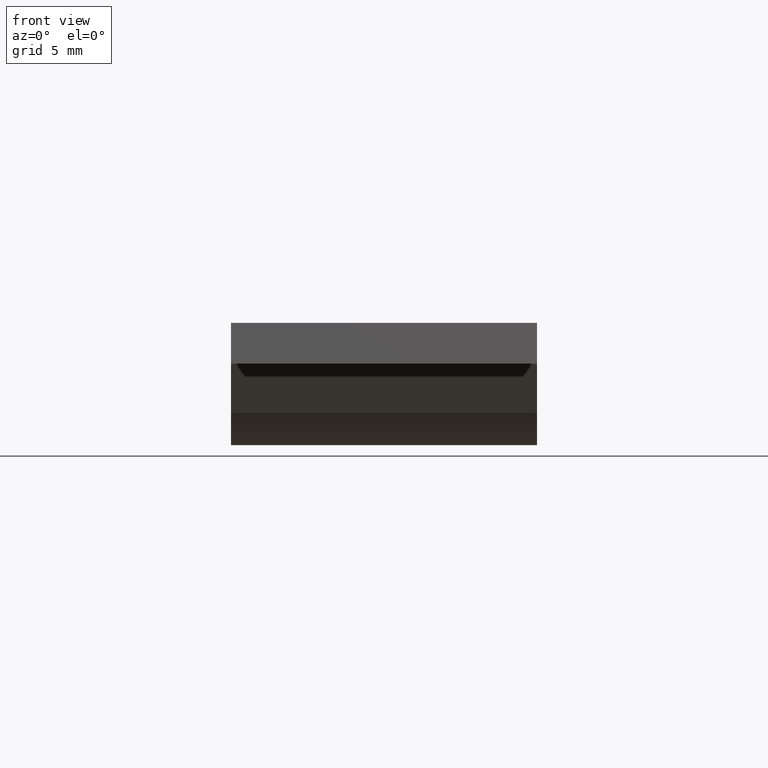
[diagram: clean part render]
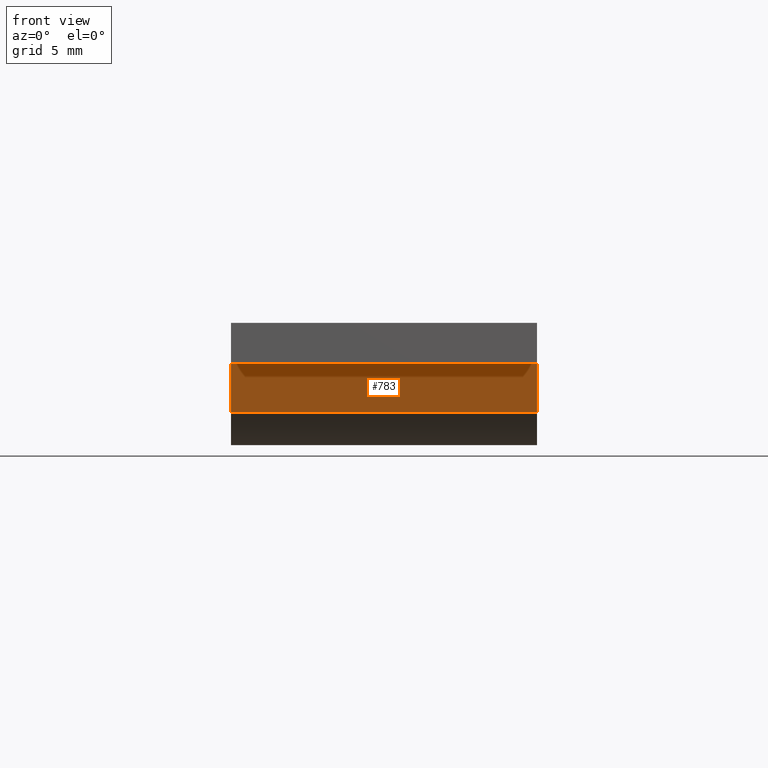
[diagram: same view with one face highlighted and labeled with its STEP entity id]
A machine part, front view. The second image highlights one B-rep face of the part: STEP entity #783.
In plain terms, the highlighted face is a freeform B-spline surface patch.
Its self-contained STEP definition (entity closure, byte-faithful):
#460=CARTESIAN_POINT('',(7.500000000000000,23.0,-2.0));
#461=VERTEX_POINT('',#460);
#467=CARTESIAN_POINT('',(7.500000000000000,24.564715524025651,-4.406024892626915));
#468=VERTEX_POINT('',#467);
#469=CARTESIAN_POINT('',(7.500000000000000,23.0,-2.0));
#470=CARTESIAN_POINT('',(7.500000000000000,24.564715524025651,-4.406024892626915));
#471=QUASI_UNIFORM_CURVE('',1,(#469,#470),.UNSPECIFIED.,.F.,.U.);
#472=EDGE_CURVE('',#461,#468,#471,.T.);
#604=CARTESIAN_POINT('',(-7.500000000000000,24.564715524025651,-4.406024892626915));
#605=VERTEX_POINT('',#604);
#621=CARTESIAN_POINT('',(-7.500000000000000,23.0,-2.0));
#622=VERTEX_POINT('',#621);
#623=CARTESIAN_POINT('',(-7.500000000000000,23.0,-2.0));
#624=CARTESIAN_POINT('',(-7.500000000000000,24.564715524025651,-4.406024892626915));
#625=QUASI_UNIFORM_CURVE('',1,(#623,#624),.UNSPECIFIED.,.F.,.U.);
#626=EDGE_CURVE('',#622,#605,#625,.T.);
#758=CARTESIAN_POINT('',(-7.500000000000000,24.564715524025651,-4.406024892626915));
#759=CARTESIAN_POINT('',(7.500000000000000,24.564715524025651,-4.406024892626915));
#760=QUASI_UNIFORM_CURVE('',1,(#758,#759),.UNSPECIFIED.,.F.,.U.);
#761=EDGE_CURVE('',#605,#468,#760,.T.);
#768=CARTESIAN_POINT('',(-8.249249970927087,22.921842451427121,-1.879819044084604));
#769=CARTESIAN_POINT('',(-8.249249970927087,24.642873338401820,-4.526206257261548));
#770=CARTESIAN_POINT('',(8.249250373258441,22.921842451427121,-1.879819044084604));
#771=CARTESIAN_POINT('',(8.249250373258441,24.642873338401820,-4.526206257261548));
#772=B_SPLINE_SURFACE_WITH_KNOTS('',1,1,((#768,#770),(#769,#771)),.UNSPECIFIED.,.F.,.F.,.U.,(2,2),(2,2),(0.0,3.156788335632812),(0.0,16.498500344185530),.UNSPECIFIED.);
#773=ORIENTED_EDGE('',*,*,#472,.F.);
#774=CARTESIAN_POINT('',(-7.500000000000000,23.0,-2.0));
#775=CARTESIAN_POINT('',(7.500000000000000,23.0,-2.0));
#776=QUASI_UNIFORM_CURVE('',1,(#774,#775),.UNSPECIFIED.,.F.,.U.);
#777=EDGE_CURVE('',#622,#461,#776,.T.);
#778=ORIENTED_EDGE('',*,*,#777,.F.);
#779=ORIENTED_EDGE('',*,*,#626,.T.);
#780=ORIENTED_EDGE('',*,*,#761,.T.);
#781=EDGE_LOOP('',(#773,#778,#779,#780));
#782=FACE_OUTER_BOUND('',#781,.T.);
#783=ADVANCED_FACE('',(#782),#772,.T.);